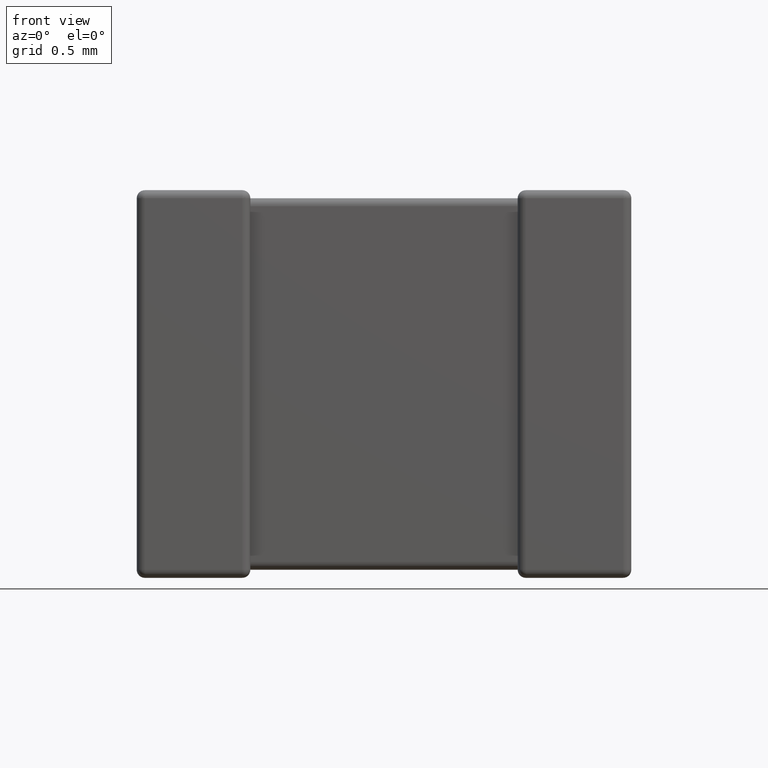
[diagram: clean part render]
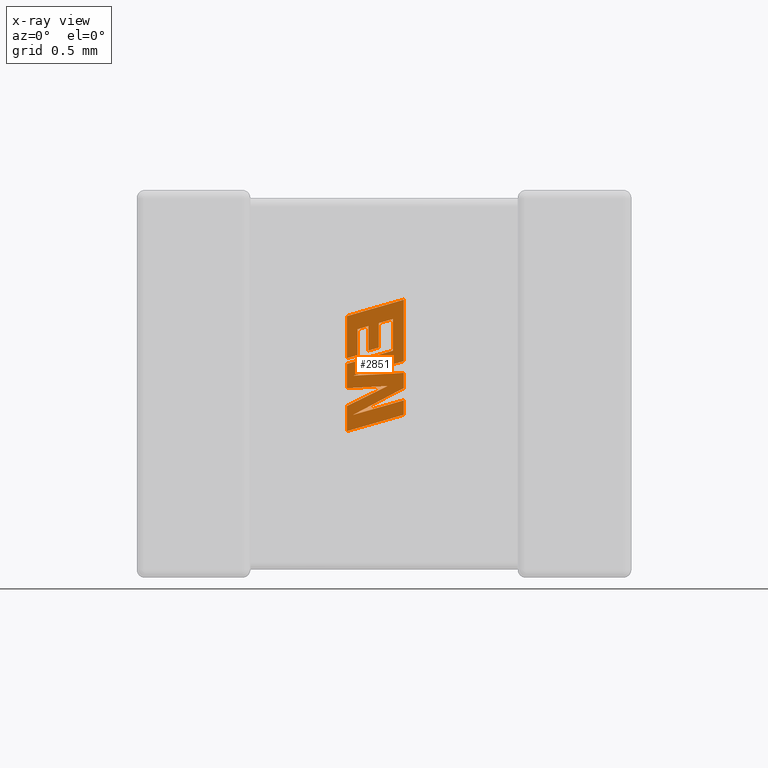
[diagram: x-ray — body ghosted, one internal face saturated and labeled with its STEP entity id]
A machine part, front view, then the same camera in x-ray: the body is ghosted and one INTERNAL B-rep face — a face not visible from any outside direction — is saturated and labeled: STEP entity #2851.
In plain terms, the highlighted planar face has unit normal (0, -1, 0).
Its self-contained STEP definition (entity closure, byte-faithful):
#19 = EDGE_CURVE ( 'NONE', #1615, #2628, #3687, .T. ) ;
#21 = LINE ( 'NONE', #1087, #43 ) ;
#43 = VECTOR ( 'NONE', #1465, 1000.000000000000000 ) ;
#51 = VECTOR ( 'NONE', #82, 1000.000000000000000 ) ;
#79 = VERTEX_POINT ( 'NONE', #1785 ) ;
#82 = DIRECTION ( 'NONE',  ( 0.000000000000000000, 0.000000000000000000, -1.000000000000000000 ) ) ;
#136 = CARTESIAN_POINT ( 'NONE',  ( 1.998000000000007548, 2.739679999999999893, -1.681081769625516698 ) ) ;
#175 = EDGE_CURVE ( 'NONE', #836, #300, #3511, .T. ) ;
#182 = ORIENTED_EDGE ( 'NONE', *, *, #3543, .F. ) ;
#201 = DIRECTION ( 'NONE',  ( 0.000000000000000000, 0.000000000000000000, 1.000000000000000000 ) ) ;
#206 = ORIENTED_EDGE ( 'NONE', *, *, #2516, .F. ) ;
#227 = ORIENTED_EDGE ( 'NONE', *, *, #2539, .F. ) ;
#288 = CARTESIAN_POINT ( 'NONE',  ( 1.998000000000007548, 2.739679999999999893, -1.279570224213747887 ) ) ;
#299 = EDGE_CURVE ( 'NONE', #2649, #4452, #3349, .T. ) ;
#300 = VERTEX_POINT ( 'NONE', #1862 ) ;
#313 = EDGE_CURVE ( 'NONE', #4452, #4324, #1885, .T. ) ;
#318 = VERTEX_POINT ( 'NONE', #2277 ) ;
#337 = LINE ( 'NONE', #3565, #2572 ) ;
#388 = ORIENTED_EDGE ( 'NONE', *, *, #3527, .F. ) ;
#419 = VECTOR ( 'NONE', #2623, 999.9999999999998863 ) ;
#437 = DIRECTION ( 'NONE',  ( -0.9617234872620624708, 0.000000000000000000, -0.2740217765953968931 ) ) ;
#446 = CARTESIAN_POINT ( 'NONE',  ( 1.810929984927357683, 2.739679999999999893, -1.178031819658119428 ) ) ;
#457 = DIRECTION ( 'NONE',  ( 0.000000000000000000, 0.000000000000000000, 1.000000000000000000 ) ) ;
#462 = VECTOR ( 'NONE', #3878, 1000.000000000000227 ) ;
#464 = CARTESIAN_POINT ( 'NONE',  ( 1.616620097122470678, 2.739679999999999893, -1.682264001305505685 ) ) ;
#468 = ORIENTED_EDGE ( 'NONE', *, *, #4257, .F. ) ;
#471 = DIRECTION ( 'NONE',  ( 0.000000000000000000, -1.000000000000000000, 0.000000000000000000 ) ) ;
#509 = DIRECTION ( 'NONE',  ( 0.000000000000000000, 0.000000000000000000, -1.000000000000000000 ) ) ;
#550 = FACE_OUTER_BOUND ( 'NONE', #1949, .T. ) ;
#557 = EDGE_CURVE ( 'NONE', #2294, #655, #4639, .T. ) ;
#615 = VERTEX_POINT ( 'NONE', #2967 ) ;
#629 = VERTEX_POINT ( 'NONE', #1879 ) ;
#655 = VERTEX_POINT ( 'NONE', #2995 ) ;
#665 = ORIENTED_EDGE ( 'NONE', *, *, #2228, .F. ) ;
#676 = ORIENTED_EDGE ( 'NONE', *, *, #4676, .F. ) ;
#684 = DIRECTION ( 'NONE',  ( 0.9610853065513847993, 0.000000000000000000, 0.2762517575166370531 ) ) ;
#733 = VECTOR ( 'NONE', #3540, 1000.000000000000114 ) ;
#758 = VECTOR ( 'NONE', #3673, 1000.000000000000114 ) ;
#773 = ORIENTED_EDGE ( 'NONE', *, *, #1044, .F. ) ;
#836 = VERTEX_POINT ( 'NONE', #2484 ) ;
#842 = VERTEX_POINT ( 'NONE', #1394 ) ;
#871 = CARTESIAN_POINT ( 'NONE',  ( 1.998000000000007548, 2.739679999999999893, -1.279570224213747887 ) ) ;
#886 = LINE ( 'NONE', #903, #4208 ) ;
#901 = CARTESIAN_POINT ( 'NONE',  ( -0.8630697648278080614, 2.739679999999999893, 0.006561855759162677285 ) ) ;
#903 = CARTESIAN_POINT ( 'NONE',  ( 1.571668070840859244, 2.739679999999999893, -1.803655342802366057 ) ) ;
#1044 = EDGE_CURVE ( 'NONE', #2628, #3049, #21, .T. ) ;
#1056 = CARTESIAN_POINT ( 'NONE',  ( 1.571668070840859244, 2.739679999999999893, -0.9429608650261656067 ) ) ;
#1078 = LINE ( 'NONE', #4340, #2446 ) ;
#1087 = CARTESIAN_POINT ( 'NONE',  ( 1.732115835898545564, 2.739679999999999893, -1.200543481232637211 ) ) ;
#1118 = ORIENTED_EDGE ( 'NONE', *, *, #299, .F. ) ;
#1148 = EDGE_CURVE ( 'NONE', #300, #1162, #3079, .T. ) ;
#1162 = VERTEX_POINT ( 'NONE', #1965 ) ;
#1199 = LINE ( 'NONE', #4459, #2371 ) ;
#1241 = CARTESIAN_POINT ( 'NONE',  ( 1.571668070840859244, 2.739679999999999893, -1.616669058274549764 ) ) ;
#1297 = CARTESIAN_POINT ( 'NONE',  ( 1.571668070840859244, 2.739679999999999893, -0.9429608650261656067 ) ) ;
#1339 = VERTEX_POINT ( 'NONE', #136 ) ;
#1340 = VERTEX_POINT ( 'NONE', #1575 ) ;
#1387 = CARTESIAN_POINT ( 'NONE',  ( 1.998000000000007548, 2.739679999999999893, -1.480932020286315431 ) ) ;
#1394 = CARTESIAN_POINT ( 'NONE',  ( 1.810929984927357683, 2.739679999999999893, -0.9950710967194210665 ) ) ;
#1439 = EDGE_CURVE ( 'NONE', #3049, #79, #2083, .T. ) ;
#1460 = CARTESIAN_POINT ( 'NONE',  ( 1.618447889521664296, 2.739679999999999893, -1.388550725683712628 ) ) ;
#1461 = DIRECTION ( 'NONE',  ( 0.9610029908221285888, 0.000000000000000000, 0.2765379750249932211 ) ) ;
#1465 = DIRECTION ( 'NONE',  ( 0.000000000000000000, 0.000000000000000000, 1.000000000000000000 ) ) ;
#1508 = CARTESIAN_POINT ( 'NONE',  ( 1.571668070840859244, 2.739679999999999893, -1.300444650809979397 ) ) ;
#1545 = CARTESIAN_POINT ( 'NONE',  ( 1.998000000000007548, 2.739679999999999893, -1.203684431944850530 ) ) ;
#1563 = VECTOR ( 'NONE', #2624, 1000.000000000000000 ) ;
#1570 = CARTESIAN_POINT ( 'NONE',  ( 1.998000000000007548, 2.739679999999999893, -1.367275740669637640 ) ) ;
#1574 = ORIENTED_EDGE ( 'NONE', *, *, #2457, .F. ) ;
#1575 = CARTESIAN_POINT ( 'NONE',  ( 1.571668070840859244, 2.739679999999999893, -1.803655342802366057 ) ) ;
#1588 = CARTESIAN_POINT ( 'NONE',  ( 1.571668070840859244, 2.739679999999999893, -1.257920606915398976 ) ) ;
#1615 = VERTEX_POINT ( 'NONE', #3212 ) ;
#1650 = LINE ( 'NONE', #871, #1563 ) ;
#1713 = DIRECTION ( 'NONE',  ( -0.8843386665637649191, 0.000000000000000000, -0.4668459304955137612 ) ) ;
#1722 = EDGE_CURVE ( 'NONE', #3606, #2649, #2462, .T. ) ;
#1785 = CARTESIAN_POINT ( 'NONE',  ( 1.652818164483139229, 2.739679999999999893, -1.040631090828483263 ) ) ;
#1795 = ORIENTED_EDGE ( 'NONE', *, *, #3097, .F. ) ;
#1844 = ORIENTED_EDGE ( 'NONE', *, *, #175, .F. ) ;
#1862 = CARTESIAN_POINT ( 'NONE',  ( 1.616620097122470678, 2.739679999999999893, -1.682264001305505685 ) ) ;
#1877 = DIRECTION ( 'NONE',  ( -0.9615454294334448981, 0.000000000000000000, -0.2746459304917006627 ) ) ;
#1879 = CARTESIAN_POINT ( 'NONE',  ( 1.571668070840859244, 2.739679999999999893, -1.257920606915398976 ) ) ;
#1885 = LINE ( 'NONE', #2636, #3238 ) ;
#1915 = DIRECTION ( 'NONE',  ( -0.9619530280415478085, 0.000000000000000000, -0.2732148821746301914 ) ) ;
#1949 = EDGE_LOOP ( 'NONE', ( #206, #1795, #2818, #2595, #1844, #182, #3520, #4556, #3548, #468, #388, #227, #665, #2097, #773, #3724, #1574, #2727, #4019, #676, #2918, #1118, #1984 ) ) ;
#1965 = CARTESIAN_POINT ( 'NONE',  ( 1.998000000000007548, 2.739679999999999893, -1.572744236262341611 ) ) ;
#1983 = EDGE_CURVE ( 'NONE', #2116, #2294, #1650, .T. ) ;
#1984 = ORIENTED_EDGE ( 'NONE', *, *, #1722, .F. ) ;
#2083 = LINE ( 'NONE', #3530, #4589 ) ;
#2097 = ORIENTED_EDGE ( 'NONE', *, *, #1439, .F. ) ;
#2106 = VERTEX_POINT ( 'NONE', #1297 ) ;
#2116 = VERTEX_POINT ( 'NONE', #288 ) ;
#2191 = CARTESIAN_POINT ( 'NONE',  ( 1.998000000000007548, 2.739679999999999893, -1.572744236262341611 ) ) ;
#2213 = EDGE_CURVE ( 'NONE', #1162, #1339, #2219, .T. ) ;
#2219 = LINE ( 'NONE', #2191, #51 ) ;
#2228 = EDGE_CURVE ( 'NONE', #79, #318, #4345, .T. ) ;
#2260 = VERTEX_POINT ( 'NONE', #2908 ) ;
#2277 = CARTESIAN_POINT ( 'NONE',  ( 1.652818164483139229, 2.739679999999999893, -1.234872274380831580 ) ) ;
#2292 = CARTESIAN_POINT ( 'NONE',  ( 1.998000000000007548, 2.739679999999999893, -0.8202796980536152249 ) ) ;
#2294 = VERTEX_POINT ( 'NONE', #1460 ) ;
#2307 = DIRECTION ( 'NONE',  ( 0.000000000000000000, 0.000000000000000000, -1.000000000000000000 ) ) ;
#2371 = VECTOR ( 'NONE', #1915, 1000.000000000000114 ) ;
#2398 = CARTESIAN_POINT ( 'NONE',  ( 1.618447889521664296, 2.739679999999999893, -1.388550725683712628 ) ) ;
#2446 = VECTOR ( 'NONE', #4414, 1000.000000000000000 ) ;
#2457 = EDGE_CURVE ( 'NONE', #842, #1615, #1078, .T. ) ;
#2462 = LINE ( 'NONE', #4662, #733 ) ;
#2470 = EDGE_CURVE ( 'NONE', #615, #842, #4387, .T. ) ;
#2484 = CARTESIAN_POINT ( 'NONE',  ( 1.998000000000007548, 2.739679999999999893, -1.480932020286315431 ) ) ;
#2498 = VECTOR ( 'NONE', #201, 1000.000000000000000 ) ;
#2508 = CARTESIAN_POINT ( 'NONE',  ( 1.998000000000007548, 2.739679999999999893, -1.681081769625516698 ) ) ;
#2514 = EDGE_CURVE ( 'NONE', #4292, #2116, #2978, .T. ) ;
#2516 = EDGE_CURVE ( 'NONE', #1340, #3606, #886, .T. ) ;
#2520 = VECTOR ( 'NONE', #437, 1000.000000000000114 ) ;
#2539 = EDGE_CURVE ( 'NONE', #318, #629, #1199, .T. ) ;
#2545 = EDGE_CURVE ( 'NONE', #2260, #615, #3047, .T. ) ;
#2559 = VECTOR ( 'NONE', #1713, 1000.000000000000227 ) ;
#2572 = VECTOR ( 'NONE', #684, 1000.000000000000114 ) ;
#2594 = VECTOR ( 'NONE', #509, 1000.000000000000000 ) ;
#2595 = ORIENTED_EDGE ( 'NONE', *, *, #1148, .F. ) ;
#2623 = DIRECTION ( 'NONE',  ( 0.9611542233438713501, 0.000000000000000000, 0.2760118818968482768 ) ) ;
#2624 = DIRECTION ( 'NONE',  ( -0.9611638845408968512, 0.000000000000000000, -0.2759782365590691122 ) ) ;
#2628 = VERTEX_POINT ( 'NONE', #3746 ) ;
#2636 = CARTESIAN_POINT ( 'NONE',  ( 1.571668070840859244, 2.739679999999999893, -1.482004336356739893 ) ) ;
#2649 = VERTEX_POINT ( 'NONE', #3165 ) ;
#2673 = VECTOR ( 'NONE', #3260, 1000.000000000000000 ) ;
#2686 = DIRECTION ( 'NONE',  ( 0.000000000000000000, 0.000000000000000000, 1.000000000000000000 ) ) ;
#2727 = ORIENTED_EDGE ( 'NONE', *, *, #2470, .F. ) ;
#2818 = ORIENTED_EDGE ( 'NONE', *, *, #2213, .F. ) ;
#2851 = ADVANCED_FACE ( 'NONE', ( #550 ), #4147, .T. ) ;
#2856 = CARTESIAN_POINT ( 'NONE',  ( 1.571668070840859244, 2.739679999999999893, -1.482004336356739893 ) ) ;
#2908 = CARTESIAN_POINT ( 'NONE',  ( 1.916890091863600487, 2.739679999999999893, -1.201214968084745482 ) ) ;
#2918 = ORIENTED_EDGE ( 'NONE', *, *, #313, .F. ) ;
#2932 = VECTOR ( 'NONE', #1877, 1000.000000000000227 ) ;
#2952 = VECTOR ( 'NONE', #2307, 1000.000000000000000 ) ;
#2967 = CARTESIAN_POINT ( 'NONE',  ( 1.916890091863600487, 2.739679999999999893, -0.9648801144511511829 ) ) ;
#2978 = LINE ( 'NONE', #1545, #2594 ) ;
#2995 = CARTESIAN_POINT ( 'NONE',  ( 1.998000000000007548, 2.739679999999999893, -1.367275740669637640 ) ) ;
#3047 = LINE ( 'NONE', #4058, #3282 ) ;
#3049 = VERTEX_POINT ( 'NONE', #3109 ) ;
#3079 = LINE ( 'NONE', #464, #419 ) ;
#3097 = EDGE_CURVE ( 'NONE', #1339, #1340, #3940, .T. ) ;
#3109 = CARTESIAN_POINT ( 'NONE',  ( 1.732115835898545564, 2.739679999999999893, -1.017556832160621649 ) ) ;
#3165 = CARTESIAN_POINT ( 'NONE',  ( 1.876245078725373050, 2.739679999999999893, -1.465608829457816453 ) ) ;
#3169 = DIRECTION ( 'NONE',  ( -0.9601763114327565019, 0.000000000000000000, -0.2793947940878394043 ) ) ;
#3201 = VECTOR ( 'NONE', #4285, 1000.000000000000114 ) ;
#3212 = CARTESIAN_POINT ( 'NONE',  ( 1.810929984927357683, 2.739679999999999893, -1.178031819658119428 ) ) ;
#3238 = VECTOR ( 'NONE', #3321, 1000.000000000000000 ) ;
#3260 = DIRECTION ( 'NONE',  ( 0.000000000000000000, 0.000000000000000000, -1.000000000000000000 ) ) ;
#3267 = AXIS2_PLACEMENT_3D ( 'NONE', #901, #471, #3690 ) ;
#3282 = VECTOR ( 'NONE', #2686, 1000.000000000000000 ) ;
#3321 = DIRECTION ( 'NONE',  ( 0.000000000000000000, 0.000000000000000000, 1.000000000000000000 ) ) ;
#3349 = LINE ( 'NONE', #4057, #758 ) ;
#3511 = LINE ( 'NONE', #1387, #2559 ) ;
#3520 = ORIENTED_EDGE ( 'NONE', *, *, #557, .F. ) ;
#3527 = EDGE_CURVE ( 'NONE', #629, #2106, #4106, .T. ) ;
#3530 = CARTESIAN_POINT ( 'NONE',  ( 1.732115835898545564, 2.739679999999999893, -1.017556832160621649 ) ) ;
#3540 = DIRECTION ( 'NONE',  ( 0.8958676361826827250, 0.000000000000000000, 0.4443210308329467173 ) ) ;
#3543 = EDGE_CURVE ( 'NONE', #655, #836, #4531, .T. ) ;
#3548 = ORIENTED_EDGE ( 'NONE', *, *, #2514, .F. ) ;
#3565 = CARTESIAN_POINT ( 'NONE',  ( 1.571668070840859244, 2.739679999999999893, -1.300444650809979397 ) ) ;
#3606 = VERTEX_POINT ( 'NONE', #1241 ) ;
#3673 = DIRECTION ( 'NONE',  ( -0.9985542843760948362, 0.000000000000000000, -0.05375259206908063886 ) ) ;
#3677 = CARTESIAN_POINT ( 'NONE',  ( 1.916890091863600487, 2.739679999999999893, -0.9648801144511511829 ) ) ;
#3687 = LINE ( 'NONE', #446, #2932 ) ;
#3690 = DIRECTION ( 'NONE',  ( 0.000000000000000000, 0.000000000000000000, -1.000000000000000000 ) ) ;
#3724 = ORIENTED_EDGE ( 'NONE', *, *, #19, .F. ) ;
#3746 = CARTESIAN_POINT ( 'NONE',  ( 1.732115835898545564, 2.739679999999999893, -1.200543481232637211 ) ) ;
#3878 = DIRECTION ( 'NONE',  ( 0.9984327301130250243, 0.000000000000000000, 0.05596501978067344035 ) ) ;
#3940 = LINE ( 'NONE', #2508, #3201 ) ;
#4019 = ORIENTED_EDGE ( 'NONE', *, *, #2545, .F. ) ;
#4057 = CARTESIAN_POINT ( 'NONE',  ( 1.876245078725373050, 2.739679999999999893, -1.465608829457816453 ) ) ;
#4058 = CARTESIAN_POINT ( 'NONE',  ( 1.916890091863600487, 2.739679999999999893, -1.201214968084745482 ) ) ;
#4106 = LINE ( 'NONE', #1588, #2498 ) ;
#4111 = VECTOR ( 'NONE', #1461, 1000.000000000000114 ) ;
#4147 = PLANE ( 'NONE',  #3267 ) ;
#4208 = VECTOR ( 'NONE', #457, 1000.000000000000000 ) ;
#4257 = EDGE_CURVE ( 'NONE', #2106, #4292, #4299, .T. ) ;
#4285 = DIRECTION ( 'NONE',  ( -0.9610674221107078363, 0.000000000000000000, -0.2763139702539095244 ) ) ;
#4292 = VERTEX_POINT ( 'NONE', #2292 ) ;
#4299 = LINE ( 'NONE', #1056, #4111 ) ;
#4324 = VERTEX_POINT ( 'NONE', #1508 ) ;
#4340 = CARTESIAN_POINT ( 'NONE',  ( 1.810929984927357683, 2.739679999999999893, -0.9950710967194210665 ) ) ;
#4345 = LINE ( 'NONE', #4392, #2673 ) ;
#4387 = LINE ( 'NONE', #3677, #2520 ) ;
#4392 = CARTESIAN_POINT ( 'NONE',  ( 1.652818164483139229, 2.739679999999999893, -1.040631090828483263 ) ) ;
#4414 = DIRECTION ( 'NONE',  ( 0.000000000000000000, 0.000000000000000000, -1.000000000000000000 ) ) ;
#4452 = VERTEX_POINT ( 'NONE', #2856 ) ;
#4459 = CARTESIAN_POINT ( 'NONE',  ( 1.652818164483139229, 2.739679999999999893, -1.234872274380831580 ) ) ;
#4531 = LINE ( 'NONE', #1570, #2952 ) ;
#4556 = ORIENTED_EDGE ( 'NONE', *, *, #1983, .F. ) ;
#4589 = VECTOR ( 'NONE', #3169, 1000.000000000000000 ) ;
#4639 = LINE ( 'NONE', #2398, #462 ) ;
#4662 = CARTESIAN_POINT ( 'NONE',  ( 1.571668070840859244, 2.739679999999999893, -1.616669058274549764 ) ) ;
#4676 = EDGE_CURVE ( 'NONE', #4324, #2260, #337, .T. ) ;